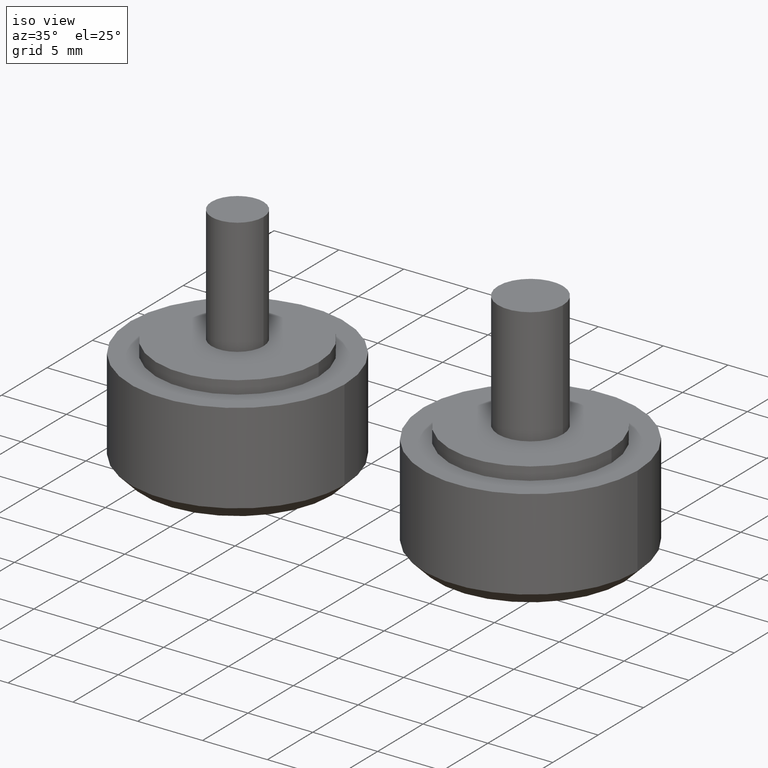
[diagram: clean part render]
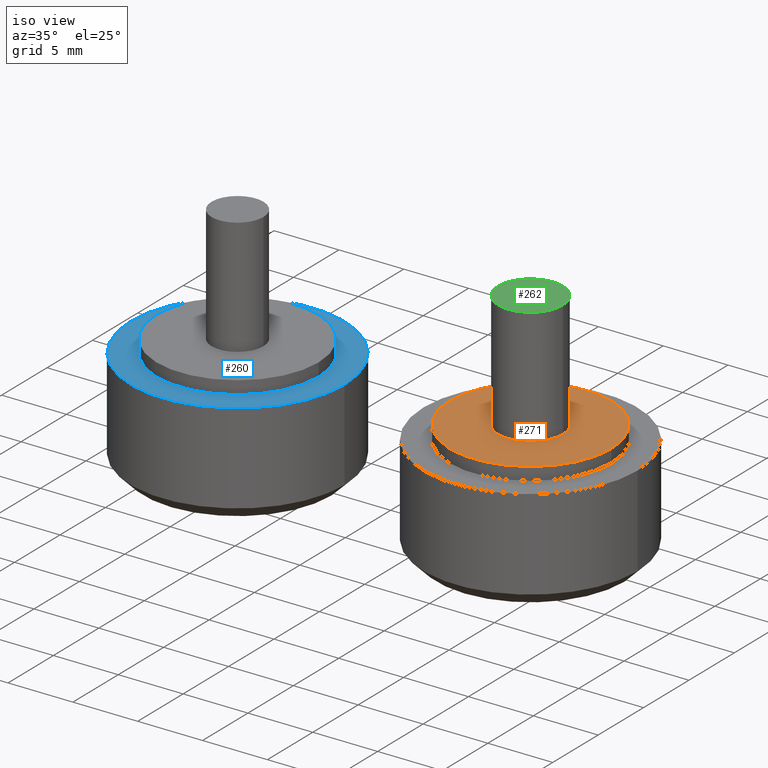
[diagram: same view with three faces highlighted in distinct colors, each labeled with its STEP entity id]
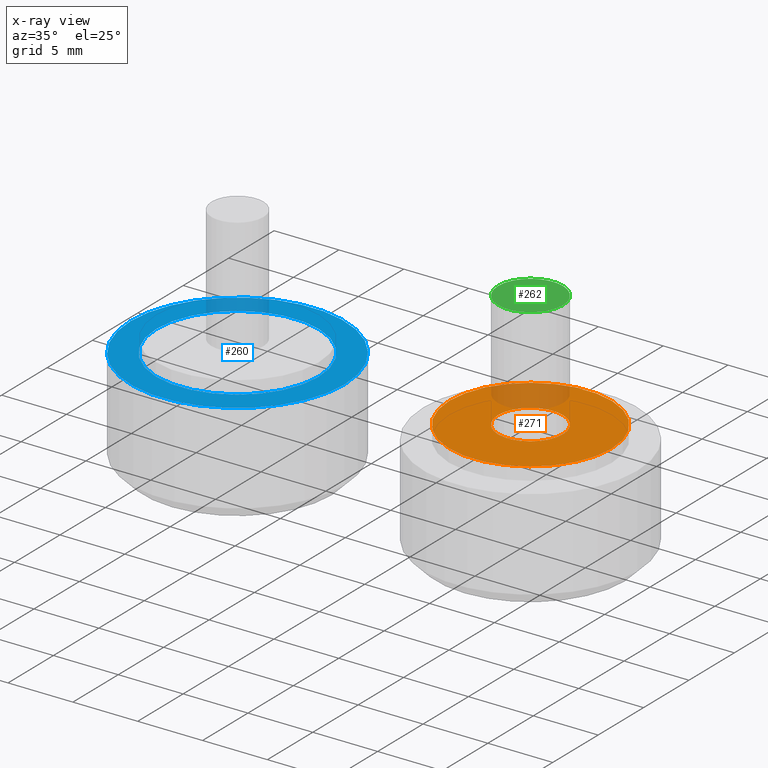
[diagram: x-ray of the same camera — body ghosted, the three highlighted faces saturated]
A machine part, iso view with three faces highlighted in distinct colors.
The next image is the same camera in x-ray (body ghosted, the three faces saturated) — at least one of them is partly hidden behind the body in this view.
Their STEP definitions:

[orange] entity #271 — the highlighted planar face has unit normal (-0, -0, 1).
#43=PLANE('',#321);
#63=FACE_BOUND('',#130,.T.);
#87=FACE_OUTER_BOUND('',#129,.T.);
#129=EDGE_LOOP('',(#239));
#130=EDGE_LOOP('',(#240));
#145=CIRCLE('',#302,2.5);
#153=CIRCLE('',#319,6.25);
#167=VERTEX_POINT('',#467);
#175=VERTEX_POINT('',#492);
#189=EDGE_CURVE('',#167,#167,#145,.T.);
#197=EDGE_CURVE('',#175,#175,#153,.T.);
#239=ORIENTED_EDGE('',*,*,#197,.T.);
#240=ORIENTED_EDGE('',*,*,#189,.T.);
#271=ADVANCED_FACE('',(#87,#63),#43,.T.);
#302=AXIS2_PLACEMENT_3D('',#468,#380,#381);
#319=AXIS2_PLACEMENT_3D('',#493,#414,#415);
#321=AXIS2_PLACEMENT_3D('',#496,#418,#419);
#380=DIRECTION('center_axis',(0.,0.,-1.));
#381=DIRECTION('ref_axis',(-1.,0.,0.));
#414=DIRECTION('center_axis',(0.,0.,1.));
#415=DIRECTION('ref_axis',(-1.,0.,0.));
#418=DIRECTION('center_axis',(0.,0.,1.));
#419=DIRECTION('ref_axis',(1.,0.,0.));
#467=CARTESIAN_POINT('',(2.5,3.06161699786838E-16,9.));
#468=CARTESIAN_POINT('Origin',(0.,0.,9.));
#492=CARTESIAN_POINT('',(6.25,7.65404249467096E-16,9.));
#493=CARTESIAN_POINT('Origin',(0.,0.,9.));
#496=CARTESIAN_POINT('Origin',(-3.59843160688966E-16,-1.48029736616688E-16,
9.));

[blue] entity #260 — the highlighted planar face has unit normal (0, 0, 1).
#38=PLANE('',#298);
#54=FACE_BOUND('',#110,.T.);
#76=FACE_OUTER_BOUND('',#109,.T.);
#109=EDGE_LOOP('',(#219));
#110=EDGE_LOOP('',(#220));
#141=CIRCLE('',#292,8.25);
#143=CIRCLE('',#296,6.25);
#163=VERTEX_POINT('',#453);
#165=VERTEX_POINT('',#459);
#185=EDGE_CURVE('',#163,#163,#141,.T.);
#187=EDGE_CURVE('',#165,#165,#143,.T.);
#219=ORIENTED_EDGE('',*,*,#185,.T.);
#220=ORIENTED_EDGE('',*,*,#187,.T.);
#260=ADVANCED_FACE('',(#76,#54),#38,.T.);
#292=AXIS2_PLACEMENT_3D('',#454,#360,#361);
#296=AXIS2_PLACEMENT_3D('',#460,#368,#369);
#298=AXIS2_PLACEMENT_3D('',#462,#372,#373);
#360=DIRECTION('center_axis',(0.,0.,1.));
#361=DIRECTION('ref_axis',(-1.,0.,0.));
#368=DIRECTION('center_axis',(0.,0.,-1.));
#369=DIRECTION('ref_axis',(-1.,0.,0.));
#372=DIRECTION('center_axis',(0.,0.,1.));
#373=DIRECTION('ref_axis',(1.,0.,0.));
#453=CARTESIAN_POINT('',(8.25,1.01033360929657E-15,8.));
#454=CARTESIAN_POINT('Origin',(0.,0.,8.));
#459=CARTESIAN_POINT('',(6.25,7.65404249467096E-16,8.));
#460=CARTESIAN_POINT('Origin',(0.,0.,8.));
#462=CARTESIAN_POINT('Origin',(-5.32769426885888E-16,0.,8.));

[green] entity #262 — the highlighted planar face has unit normal (-0, -0, 1).
#39=PLANE('',#303);
#78=FACE_OUTER_BOUND('',#113,.T.);
#113=EDGE_LOOP('',(#223));
#144=CIRCLE('',#301,2.5);
#166=VERTEX_POINT('',#465);
#188=EDGE_CURVE('',#166,#166,#144,.T.);
#223=ORIENTED_EDGE('',*,*,#188,.T.);
#262=ADVANCED_FACE('',(#78),#39,.T.);
#301=AXIS2_PLACEMENT_3D('',#466,#378,#379);
#303=AXIS2_PLACEMENT_3D('',#469,#382,#383);
#378=DIRECTION('center_axis',(0.,0.,1.));
#379=DIRECTION('ref_axis',(-1.,0.,0.));
#382=DIRECTION('center_axis',(0.,0.,1.));
#383=DIRECTION('ref_axis',(1.,0.,0.));
#465=CARTESIAN_POINT('',(2.5,3.06161699786838E-16,18.));
#466=CARTESIAN_POINT('Origin',(0.,0.,18.));
#469=CARTESIAN_POINT('Origin',(-1.18032060367666E-16,4.62592926927149E-17,
18.));